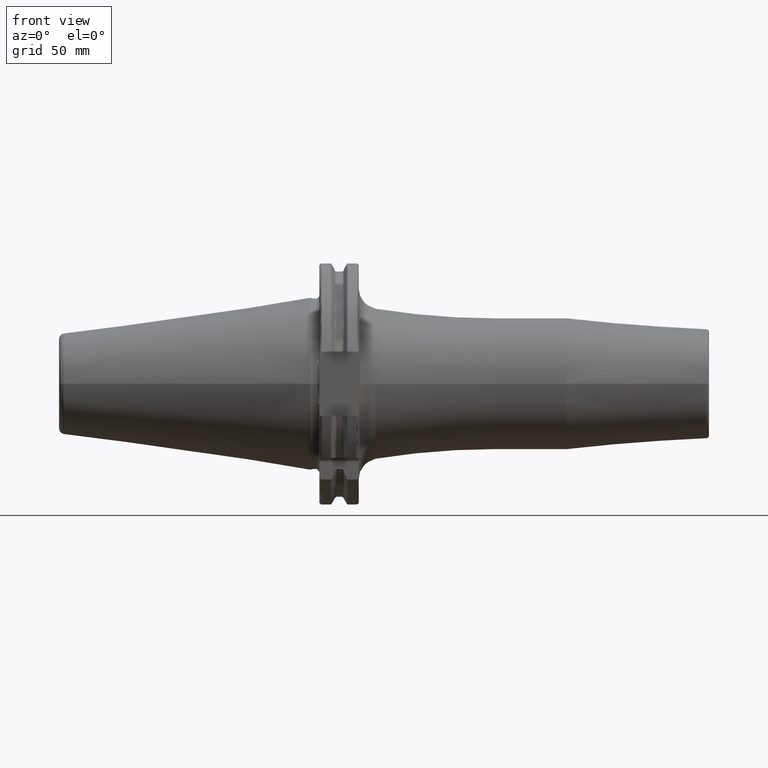
[diagram: clean part render]
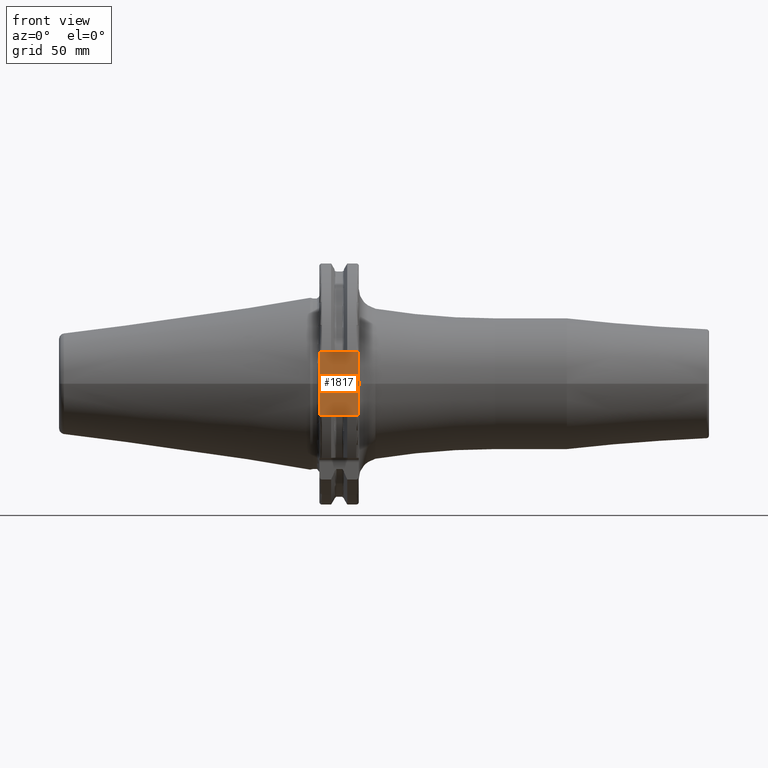
[diagram: same view with one face highlighted and labeled with its STEP entity id]
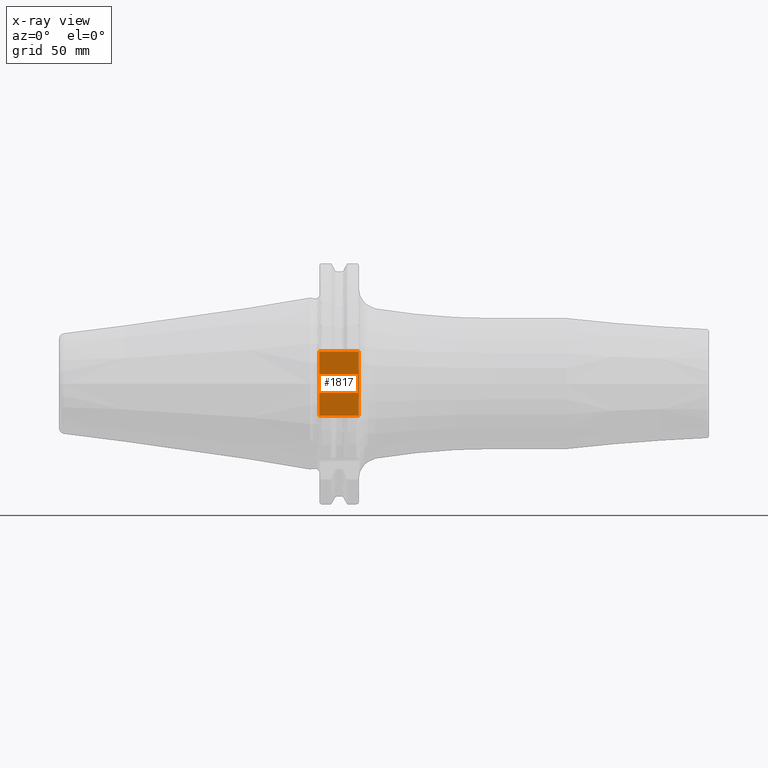
[diagram: x-ray of the same camera — body ghosted, the highlighted face saturated]
A machine part, front view. The second image highlights one B-rep face of the part: STEP entity #1817.
The next image is the same camera in x-ray: the body ghosted, the highlighted face saturated — about 0% of this face is hidden behind the body in this view.
In plain terms, the highlighted planar face has unit normal (0, 1, 0).
Its self-contained STEP definition (entity closure, byte-faithful):
#151=DIRECTION('',(0.E0,1.504241246318E-6,9.999999999989E-1));
#152=VECTOR('',#151,5.076494075405E0);
#153=CARTESIAN_POINT('',(1.905E1,-3.75E1,-1.29E1));
#154=LINE('',#153,#152);
#160=DIRECTION('',(0.E0,1.216531938837E-6,9.999999999993E-1));
#161=VECTOR('',#160,5.077001735295E0);
#162=CARTESIAN_POINT('',(1.905E1,-3.750000617633E1,7.822998264708E0));
#163=LINE('',#162,#161);
#172=CARTESIAN_POINT('',(1.909084323172E1,-3.75E1,3.908243069692E-3));
#173=CARTESIAN_POINT('',(1.909084944962E1,-3.75E1,-5.842516242867E-1));
#174=CARTESIAN_POINT('',(1.908793573392E1,-3.750000027272E1,-1.780124366833E0));
#175=CARTESIAN_POINT('',(1.907589305179E1,-3.749999904547E1,-3.594818013262E0));
#176=CARTESIAN_POINT('',(1.905913221673E1,-3.750000354541E1,-5.543720527889E0));
#177=CARTESIAN_POINT('',(1.905E1,-3.749999236373E1,-7.037183541872E0));
#178=CARTESIAN_POINT('',(1.905E1,-3.749999236373E1,-7.823505924601E0));
#199=DIRECTION('',(-1.E0,0.E0,0.E0));
#200=VECTOR('',#199,1.585E1);
#201=CARTESIAN_POINT('',(1.905E1,-3.75E1,-1.29E1));
#202=LINE('',#201,#200);
#203=CARTESIAN_POINT('',(1.905E1,-3.750000617633E1,7.822998264708E0));
#204=CARTESIAN_POINT('',(1.905E1,-3.750000617633E1,6.956390784734E0));
#205=CARTESIAN_POINT('',(1.906149209346E1,-3.749999711771E1,5.222099729146E0));
#206=CARTESIAN_POINT('',(1.908430936946E1,-3.750000082351E1,2.614378134347E0));
#207=CARTESIAN_POINT('',(1.909083402845E1,-3.75E1,8.744583780131E-1));
#208=CARTESIAN_POINT('',(1.909084323172E1,-3.75E1,3.908243069692E-3));
#370=DIRECTION('',(-1.E0,0.E0,0.E0));
#371=VECTOR('',#370,1.585E1);
#372=CARTESIAN_POINT('',(1.905E1,-3.75E1,1.29E1));
#373=LINE('',#372,#371);
#648=DIRECTION('',(0.E0,0.E0,1.E0));
#649=VECTOR('',#648,2.58E1);
#650=CARTESIAN_POINT('',(3.2E0,-3.75E1,-1.29E1));
#651=LINE('',#650,#649);
#1392=CARTESIAN_POINT('',(1.905E1,-3.75E1,-1.29E1));
#1394=VERTEX_POINT('',#1392);
#1396=CARTESIAN_POINT('',(1.905E1,-3.75E1,1.29E1));
#1398=VERTEX_POINT('',#1396);
#1420=CARTESIAN_POINT('',(3.2E0,-3.75E1,-1.29E1));
#1422=VERTEX_POINT('',#1420);
#1423=CARTESIAN_POINT('',(3.2E0,-3.75E1,1.29E1));
#1424=VERTEX_POINT('',#1423);
#1516=CARTESIAN_POINT('',(1.905E1,-3.749987959361E1,-7.823845702786E0));
#1518=VERTEX_POINT('',#1516);
#1525=CARTESIAN_POINT('',(1.905E1,-3.750014435566E1,7.822576584524E0));
#1527=VERTEX_POINT('',#1525);
#1528=CARTESIAN_POINT('',(1.909084323172E1,-3.75E1,3.908243069691E-3));
#1529=VERTEX_POINT('',#1528);
#1799=CARTESIAN_POINT('',(1.905E1,-3.75E1,-1.29E1));
#1800=DIRECTION('',(0.E0,1.E0,0.E0));
#1801=DIRECTION('',(0.E0,0.E0,1.E0));
#1802=AXIS2_PLACEMENT_3D('',#1799,#1800,#1801);
#1803=PLANE('',#1802);
#1804=ORIENTED_EDGE('',*,*,#1769,.F.);
#1806=ORIENTED_EDGE('',*,*,#1805,.T.);
#1807=ORIENTED_EDGE('',*,*,#1786,.T.);
#1808=ORIENTED_EDGE('',*,*,#1757,.F.);
#1810=ORIENTED_EDGE('',*,*,#1809,.T.);
#1812=ORIENTED_EDGE('',*,*,#1811,.T.);
#1814=ORIENTED_EDGE('',*,*,#1813,.F.);
#1815=EDGE_LOOP('',(#1804,#1806,#1807,#1808,#1810,#1812,#1814));
#1816=FACE_OUTER_BOUND('',#1815,.F.);
#1817=ADVANCED_FACE('',(#1816),#1803,.F.);
#179=B_SPLINE_CURVE_WITH_KNOTS('',3,(#172,#173,#174,#175,#176,#177,#178),
.UNSPECIFIED.,.F.,.F.,(4,1,1,1,4),(0.E0,2.5E-1,5.E-1,7.5E-1,1.E0),
.UNSPECIFIED.);
#209=B_SPLINE_CURVE_WITH_KNOTS('',3,(#203,#204,#205,#206,#207,#208),
.UNSPECIFIED.,.F.,.F.,(4,1,1,4),(0.E0,3.333333333333E-1,6.666666666667E-1,1.E0),
.UNSPECIFIED.);
#1757=EDGE_CURVE('',#1394,#1518,#154,.T.);
#1769=EDGE_CURVE('',#1527,#1398,#163,.T.);
#1786=EDGE_CURVE('',#1529,#1518,#179,.T.);
#1805=EDGE_CURVE('',#1527,#1529,#209,.T.);
#1809=EDGE_CURVE('',#1394,#1422,#202,.T.);
#1811=EDGE_CURVE('',#1422,#1424,#651,.T.);
#1813=EDGE_CURVE('',#1398,#1424,#373,.T.);